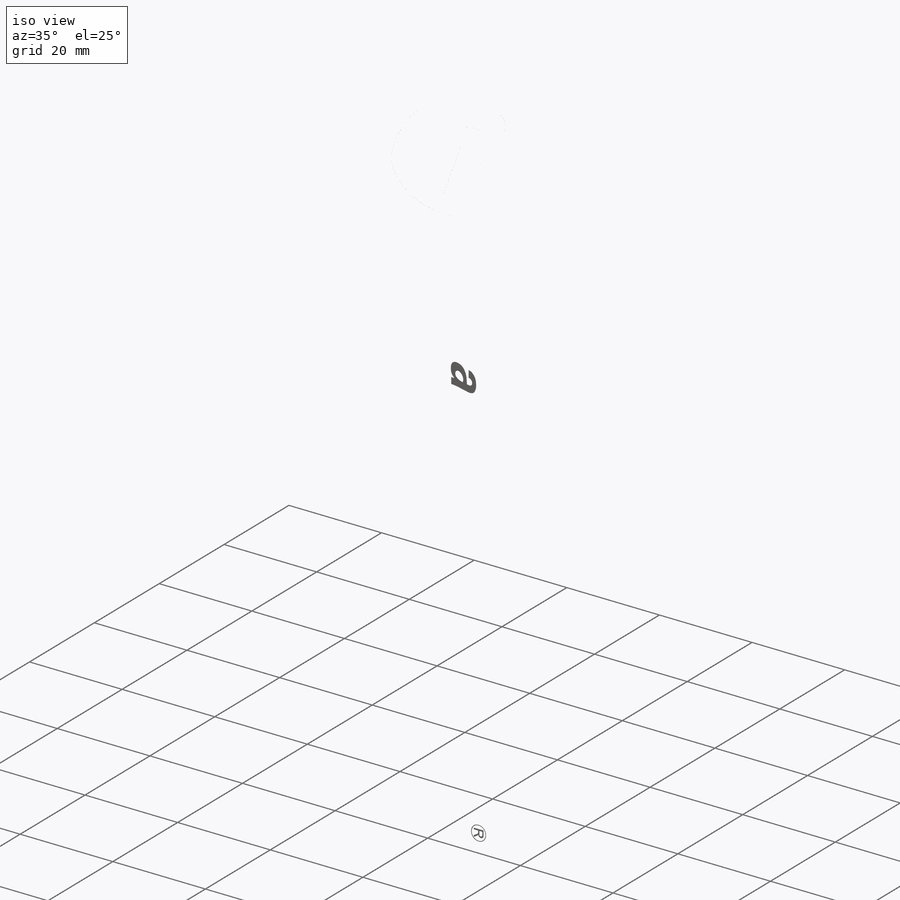
[diagram: iso view]
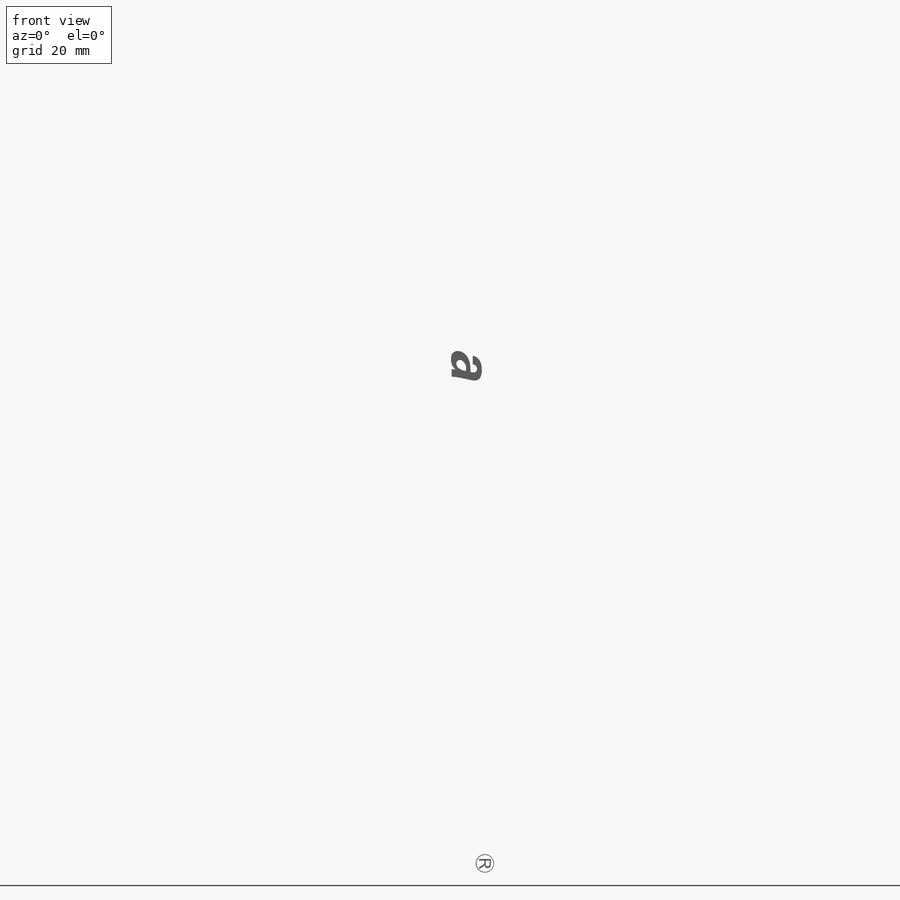
[diagram: front view]
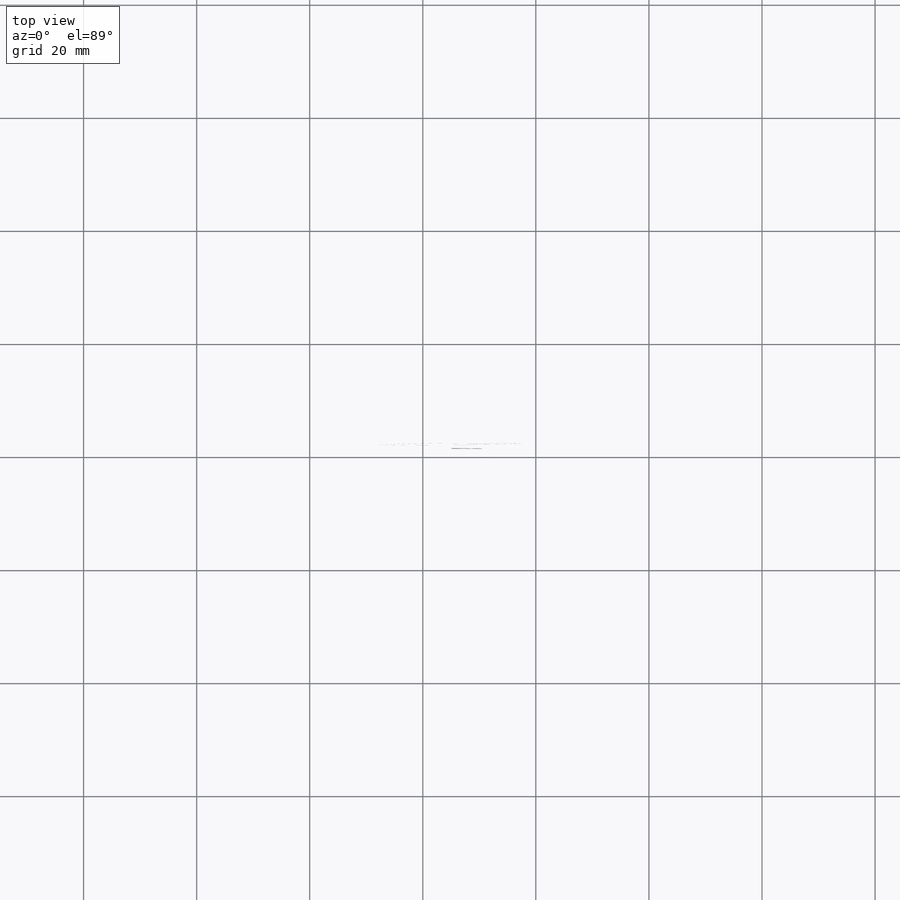
[diagram: top view]
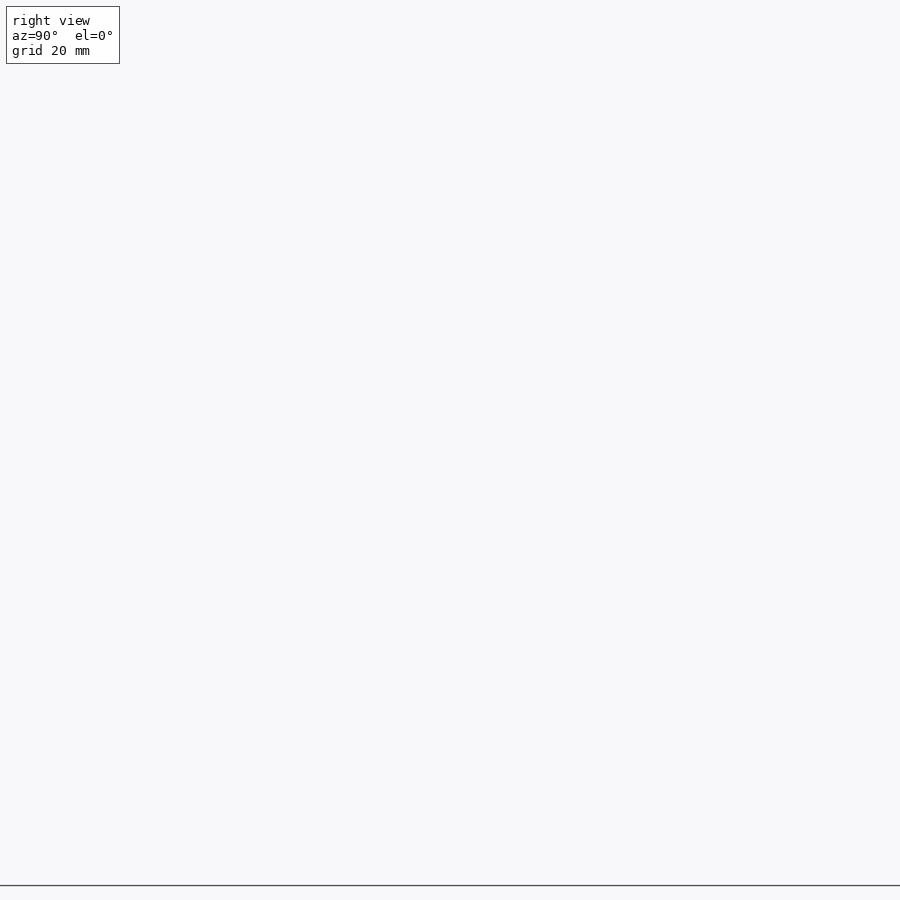
[diagram: right view]
SOLIDWORKS PART (.sldprt)
format: sldprt  version: not decoded by parser v0  size: 9,029,632 bytes
history: native  units: mm
features: sketch x15, extrude x11, material x1 (+11 scaffold rows collapsed)
feature tree (38):
  scaffold x11  (default folders/planes/origin — collapsed)
  material  "Air"
  sketch  "Model"
  sketch  "Sketch7"  dims[c1.D1=~2413.620523mm c1.D2=~5583.106036mm c2.D1=25.0mm c2.D3=25.0mm c2.D4=25.0mm c2.D5=1924.1898mm c3.D5=~1.380376deg c4.D5=~557.040752mm c4.D2=25.0mm]
  sketch  "Sketch2"
  sketch  "Sketch5"
  sketch  "Sketch6"
  extrude  "Boss-Extrude3"  Depth=0.25mm
  sketch  "Sketch8"
  extrude  "Boss-Extrude4"  Depth=2.54mm
  extrude  "Boss-Extrude5"  Depth=0.1mm
  sketch  "Sketch9"
  extrude  "Boss-Extrude6"  [1 undecoded]
  sketch  "Sketch10"
  extrude  "Text, no internal cavities"  Depth=0.25mm
  extrude  "Outline"  [1 undecoded]
  sketch  "Sketch10<3>"
  extrude  "Boss-Extrude19"  [1 undecoded]
  sketch  "Sketch10<4>"
  extrude  "Boss-Extrude22"  [1 undecoded]
  sketch  "Sketch10<5>"
  extrude  "Boss-Extrude23"  [1 undecoded]
  sketch  "Sketch10<6>"
  extrude  "Boss-Extrude25"  [1 undecoded]
  sketch  "Sketch10<8>"
  extrude  "Boss-Extrude26"  [1 undecoded]
  sketch  "Sketch10<10>"
  sketch  "Outline sketch for mating"
decode coverage: 5 of 26 modeling features carry decoded parameters
note: ~ marks probable driven/reference dimensions
note: 7 parameter values undecoded
summary: no parameter record found for 7 features
note: suppression state not decoded; provenance and decode notes live in map.json
